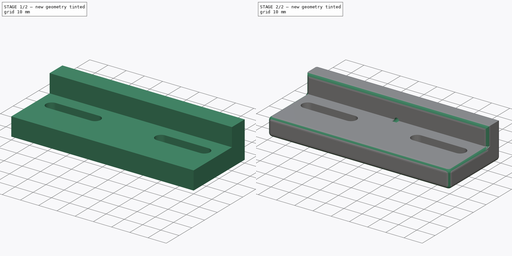
[diagram: build sequence overview — one tinted view per stage of 2, left to right]
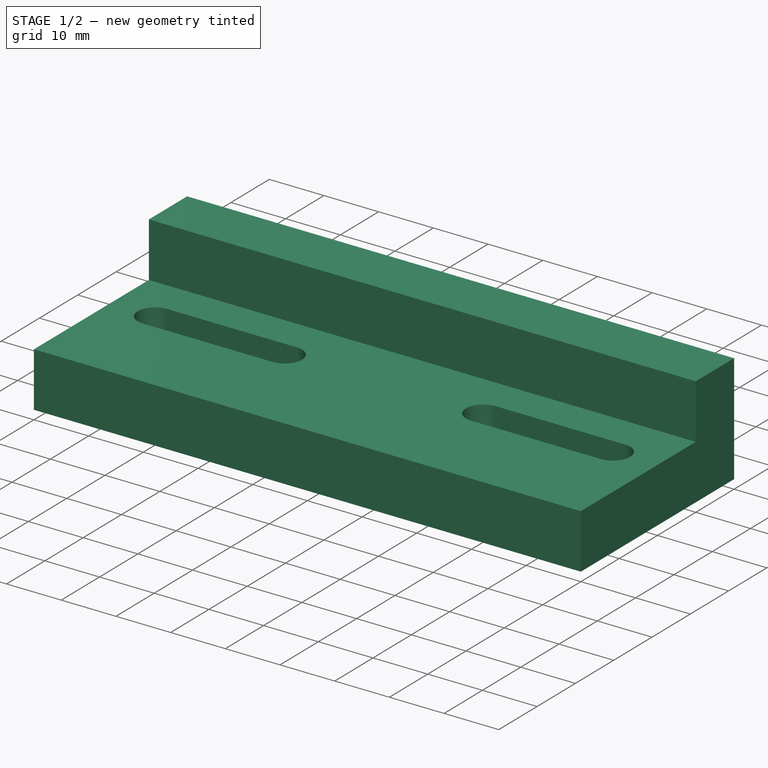
[diagram: stage 1 of 2 — iso view after this stage's code; geometry added in this stage tinted green]
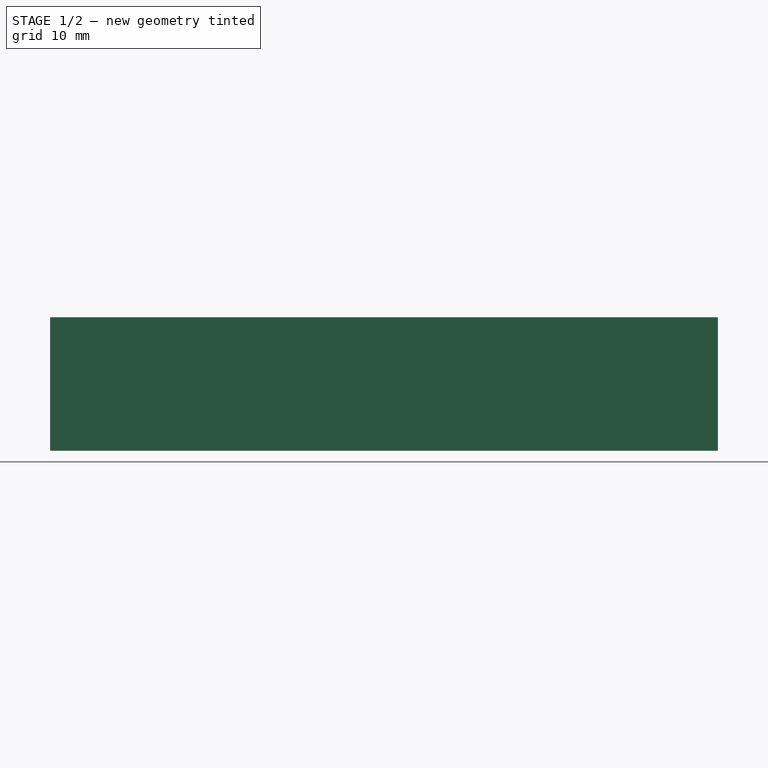
[diagram: stage 1 of 2 — front view after this stage's code; geometry added in this stage tinted green]
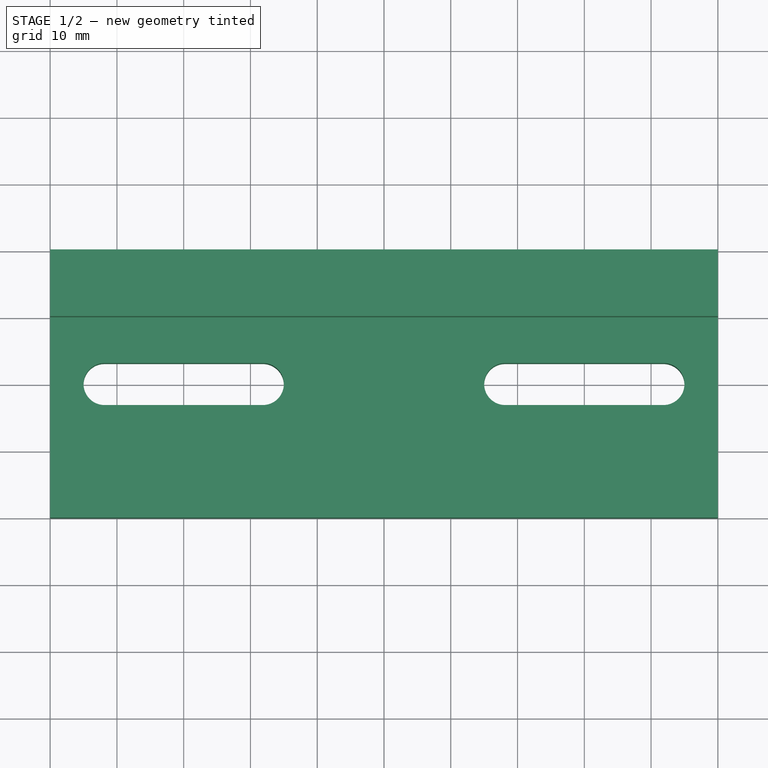
[diagram: stage 1 of 2 — top view after this stage's code; geometry added in this stage tinted green]
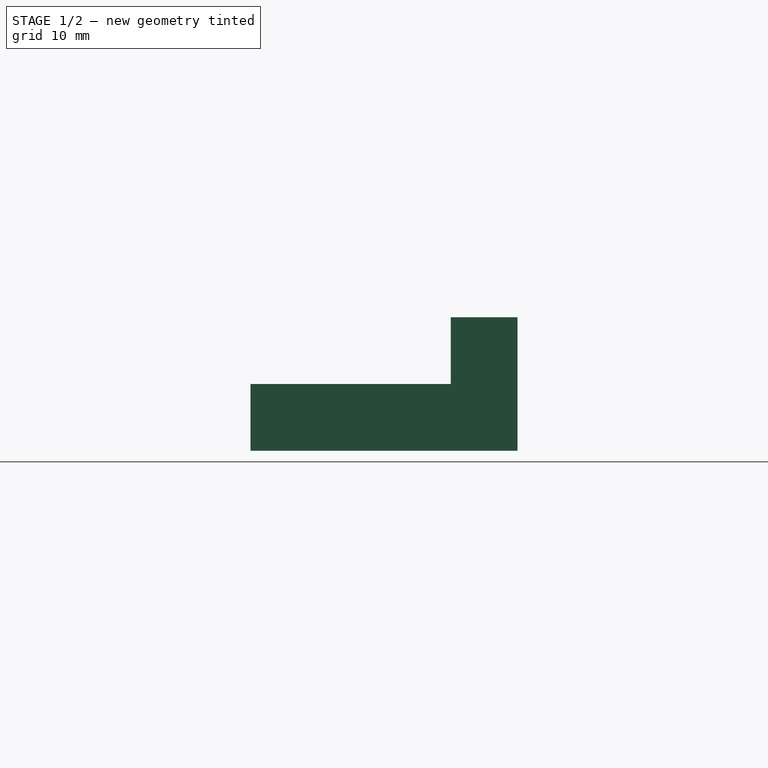
[diagram: stage 1 of 2 — right view after this stage's code; geometry added in this stage tinted green]
FCSTD DOCUMENT  (FreeCAD 0.19R24276 (Git))
Label: button_snap_holder
License: All rights reserved
LicenseURL: http://en.wikipedia.org/wiki/All_rights_reserved
objects: Sketcher::SketchObject×3, PartDesign::Pad×2, Spreadsheet::Sheet×1, PartDesign::Pocket×1, PartDesign::Fillet×1, PartDesign::Body×1
note: 12 computed .brp shape members not serialized (recipe doc carries the construction recipe); baked Part::Feature solids carry a one-line shape summary decoded from their .brp

FEATURE [Sketcher::SketchObject] Sketch
  FullyConstrained = true
  MapMode = 5
  Support = -> [XY_Plane]
  expr: Constraints[37] = <<dims>>.hole_center_gap
  expr: Constraints[38] = <<dims>>.slot_length - <<dims>>.hole_diam
  expr: Constraints[32] = <<dims>>.hole_diam
  expr: Constraints[17] = <<dims>>.height
  expr: Constraints[16] = <<dims>>.width
  sketch-geometry (16):
    g0: LineSegment StartX=-50 StartY=20 StartZ=0 EndX=50 EndY=20 EndZ=0
    g1: LineSegment StartX=50 StartY=20 StartZ=0 EndX=50 EndY=-20 EndZ=0
    g2: LineSegment StartX=50 StartY=-20 StartZ=0 EndX=-50 EndY=-20 EndZ=0
    g3: LineSegment StartX=-50 StartY=-20 StartZ=0 EndX=-50 EndY=20 EndZ=0
    g4: LineSegment StartX=0 StartY=20 StartZ=0 EndX=0 EndY=-20 EndZ=0
    g5: LineSegment StartX=-50 StartY=0 StartZ=0 EndX=50 EndY=0 EndZ=0
    g6: ArcOfCircle CenterX=-41.85 CenterY=0 CenterZ=0 NormalX=0 NormalY=0 NormalZ=1 AngleXU=0 Radius=3.15 StartAngle=1.5708 EndAngle=4.71239
    g7: ArcOfCircle CenterX=-18.15 CenterY=0 CenterZ=0 NormalX=0 NormalY=0 NormalZ=1 AngleXU=0 Radius=3.15 StartAngle=4.71239 EndAngle=7.85398
    g8: LineSegment StartX=-41.85 StartY=-3.15 StartZ=0 EndX=-18.15 EndY=-3.15 EndZ=0
    g9: LineSegment StartX=-41.85 StartY=3.15 StartZ=0 EndX=-18.15 EndY=3.15 EndZ=0
    g10: ArcOfCircle CenterX=18.15 CenterY=0 CenterZ=0 NormalX=0 NormalY=0 NormalZ=1 AngleXU=0 Radius=3.15 StartAngle=1.5708 EndAngle=4.71239
    g11: ArcOfCircle CenterX=41.85 CenterY=0 CenterZ=0 NormalX=0 NormalY=0 NormalZ=1 AngleXU=0 Radius=3.15 StartAngle=4.71239 EndAngle=7.85398
    g12: LineSegment StartX=18.15 StartY=-3.15 StartZ=0 EndX=41.85 EndY=-3.15 EndZ=0
    g13: LineSegment StartX=18.15 StartY=3.15 StartZ=0 EndX=41.85 EndY=3.15 EndZ=0
    g14: GeomPoint X=-30 Y=0 Z=0
    g15: GeomPoint X=30 Y=0 Z=0
  constraints (39):
    c: Coincident(g0,g1)
    c: Coincident(g1,g2)
    c: Coincident(g2,g3)
    c: Coincident(g3,g0)
    c: Horizontal(g0)
    c: Horizontal(g2)
    c: Vertical(g1)
    c: Vertical(g3)
    c: PointOnObject(g4,g0)
    c: PointOnObject(g4,g2)
    c: Vertical(g4)
    c: Symmetric(g4,g4,g-1)
    c: PointOnObject(g5,g3)
    c: PointOnObject(g5,g1)
    c: Horizontal(g5)
    c: Symmetric(g5,g5,g-1)
    c: Distance(g0) = 100
    c: Distance(g3) = 40
    c: Tangent(g6,g9) = 1.5708
    c: Tangent(g6,g8) = -1.5708
    c: Tangent(g8,g7) = -1.5708
    c: Tangent(g9,g7) = 1.5708
    c: Horizontal(g8)
    c: Equal(g6,g7)
    c: Tangent(g10,g13) = 1.5708
    c: Tangent(g10,g12) = -1.5708
    c: Tangent(g12,g11) = -1.5708
    c: Tangent(g13,g11) = 1.5708
    c: Horizontal(g12)
    c: Equal(g10,g11)
    c: Equal(g8,g12)
    c: Equal(g6,g10)
    c: Distance(g7,g7) = 6.3
    c: PointOnObject(g6,g5)
    c: Symmetric(g6,g7,g14)
    c: Symmetric(g10,g11,g15)
    c: Symmetric(g14,g15,g-1)
    c: Distance(g14,g15) = 60
    c: Distance(g8) = 23.7
FEATURE [Spreadsheet::Sheet] Spreadsheet  label="dims"
  cells = A1=width; B1(width)=100; A2=height; B2(height)==20 * 2; A3=thickness; B3(thickness)=10; A4=slot length; B4(slot_length)=30; A5=hole center gap; B5(hole_center_gap)=60; A6=hole diam (m6) ; B6(hole_diam)=6.3; A7=platform length; B7(platform_length)=20; A8=snap mount hole diam; B8(snap_mount_hole_diam)=2.5; A9=snap screw length; B9(snap_screw_length)=12
FEATURE [PartDesign::Pad] Pad
  Direction = (1,1,1)
  Length = 10
  Length2 = 100
  Profile = -> Sketch
  Type = 0
FEATURE [Sketcher::SketchObject] Sketch001
  ExternalGeometry = -> [Pad]
  FullyConstrained = true
  MapMode = 5
  Support = -> [XY_Plane]
  expr: Constraints[10] = <<dims>>.thickness
  sketch-geometry (4):
    g0: LineSegment StartX=-50 StartY=20 StartZ=0 EndX=50 EndY=20 EndZ=0
    g1: LineSegment StartX=50 StartY=20 StartZ=0 EndX=50 EndY=10 EndZ=0
    g2: LineSegment StartX=50 StartY=10 StartZ=0 EndX=-50 EndY=10 EndZ=0
    g3: LineSegment StartX=-50 StartY=10 StartZ=0 EndX=-50 EndY=20 EndZ=0
  constraints (11):
    c: Coincident(g0,g1)
    c: Coincident(g1,g2)
    c: Coincident(g2,g3)
    c: Coincident(g3,g0)
    c: Horizontal(g0)
    c: Horizontal(g2)
    c: Vertical(g1)
    c: Vertical(g3)
    c: Coincident(g0,g-3)
    c: PointOnObject(g1,g-4)
    c: Distance(g1) = 10
FEATURE [PartDesign::Pad] Pad001
  BaseFeature = -> Pad
  Direction = (1,1,1)
  Length = 20
  Length2 = 100
  Profile = -> Sketch001
  Type = 0
  expr: Length = <<dims>>.platform_length
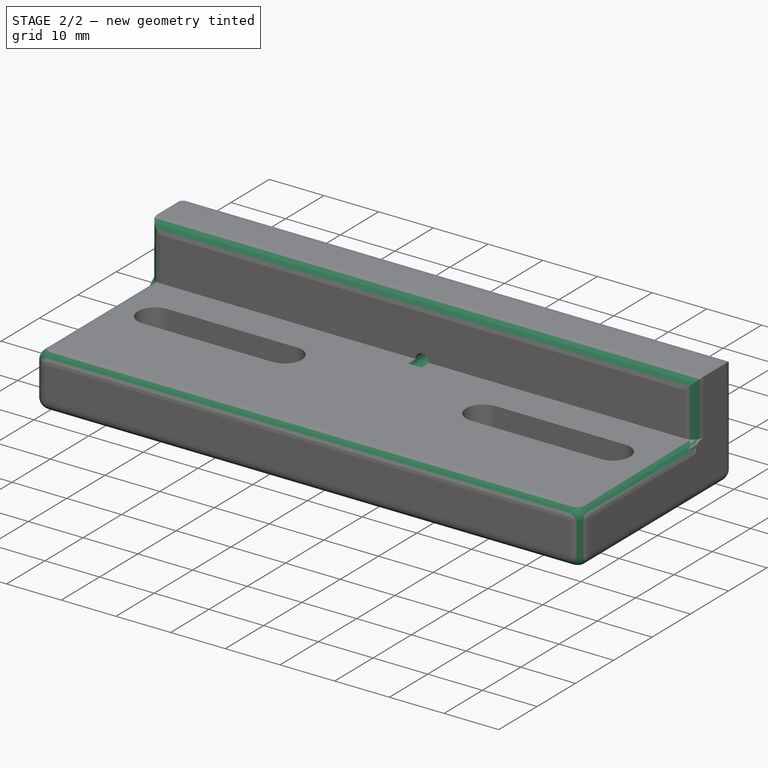
[diagram: stage 2 of 2 — iso view after this stage's code; geometry added in this stage tinted green]
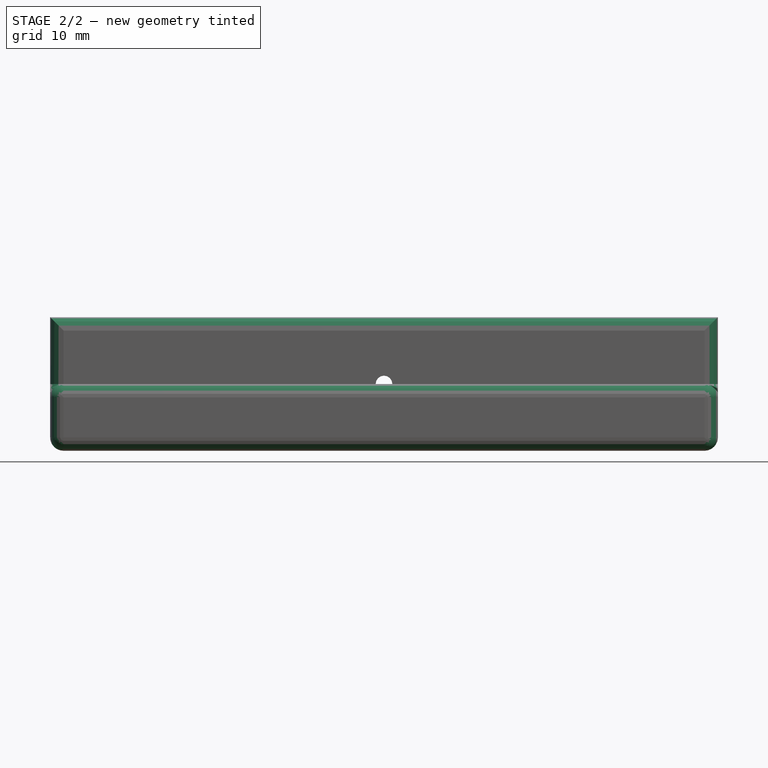
[diagram: stage 2 of 2 — front view after this stage's code; geometry added in this stage tinted green]
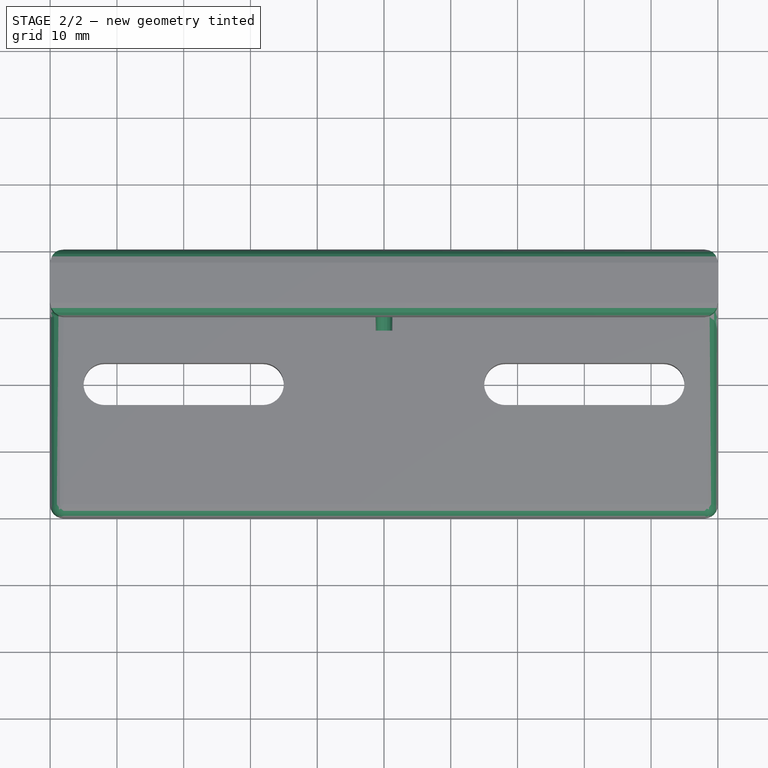
[diagram: stage 2 of 2 — top view after this stage's code; geometry added in this stage tinted green]
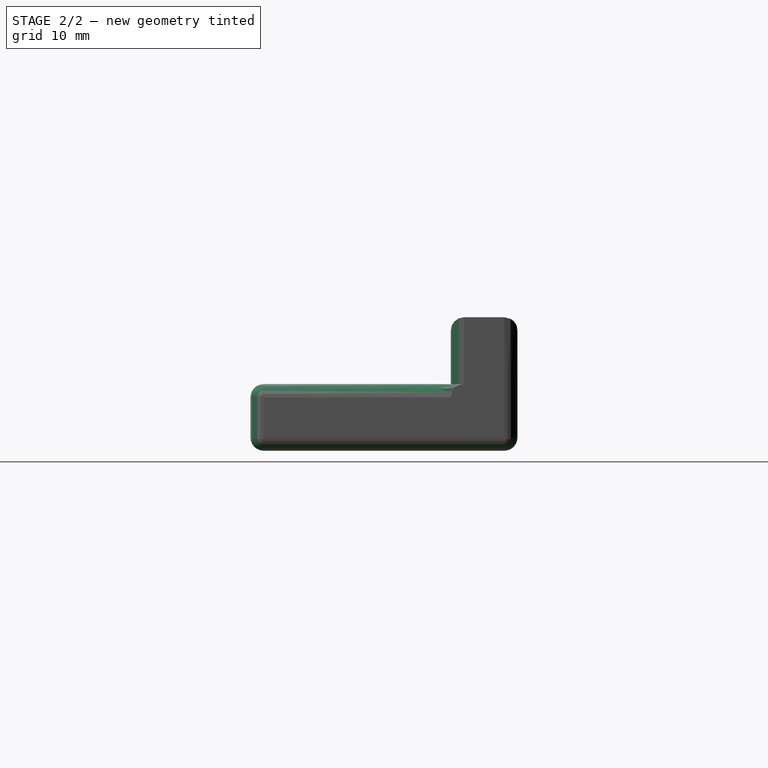
[diagram: stage 2 of 2 — right view after this stage's code; geometry added in this stage tinted green]
FEATURE [Sketcher::SketchObject] Sketch002
  FullyConstrained = true
  MapMode = 5
  Placement = pos=(0,20,0) rot=(0,0.707107,0.707107;3.14159rad)
  Support = -> [Pad001]
  expr: Constraints[2] = <<dims>>.snap_mount_hole_diam
  expr: Constraints[1] = <<dims>>.platform_length / 2
  sketch-geometry (1):
    g0: Circle CenterX=0 CenterY=10 CenterZ=0 NormalX=0 NormalY=0 NormalZ=1 AngleXU=0 Radius=1.25
  constraints (3):
    c: PointOnObject(g0,g-2)
    c: Distance(g-1,g0) = 10
    c: Diameter(g0) = 2.5
FEATURE [PartDesign::Pocket] Pocket
  BaseFeature = -> Pad001
  Length = 12
  Length2 = 100
  Profile = -> Sketch002
  Type = 0
  expr: Length = <<dims>>.snap_screw_length
FEATURE [PartDesign::Fillet] Fillet
  Base = -> Pocket [Edge1,Edge14,Edge38,Edge41,Edge24,Edge13,Edge2,Edge36,Edge10,Edge34,Edge6,Edge15,Edge40,Edge7,Edge23,Edge54,Edge45,Edge35,Edge25,Edge9]
  BaseFeature = -> Pocket
  Radius = 2
  SupportTransform = false
FEATURE [PartDesign::Body] Body
  Group = -> [Sketch,Pad,Sketch001,Pad001,Sketch002,Pocket,Fillet]
  Origin = -> Origin
  Tip = -> Fillet
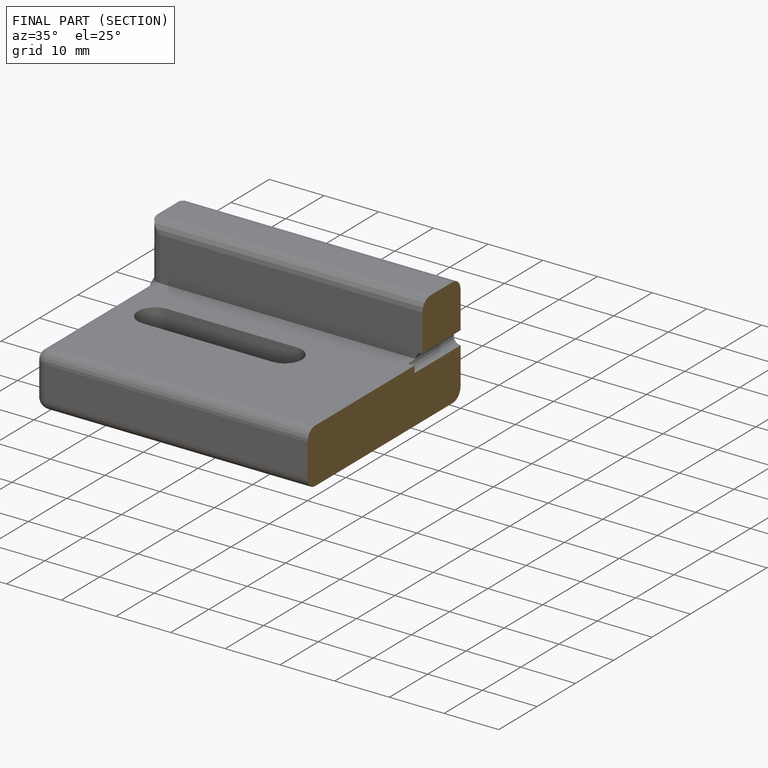
[diagram: finished part — half-section view (interior)]
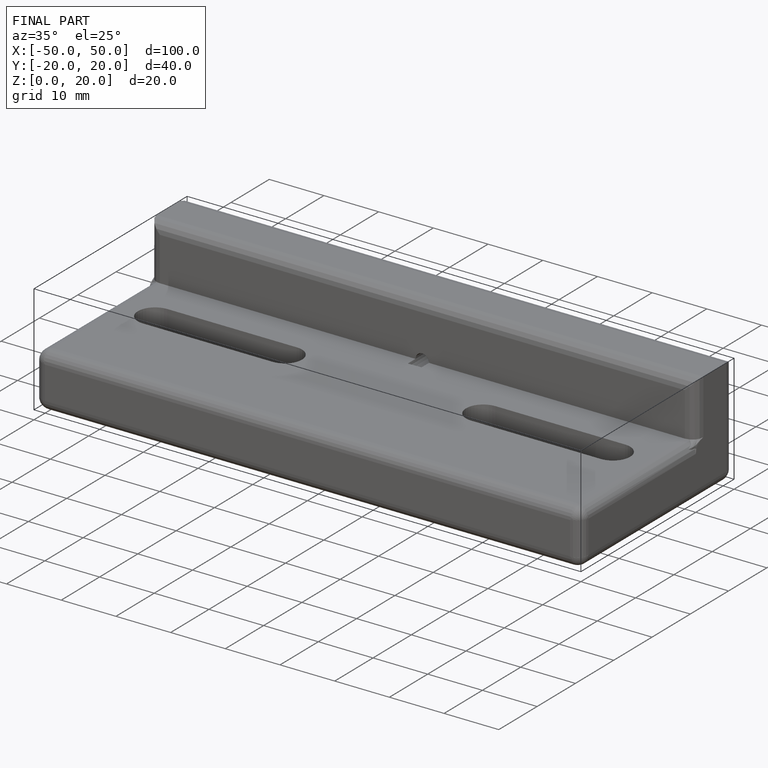
[diagram: finished part — iso view with bounding-box wireframe]
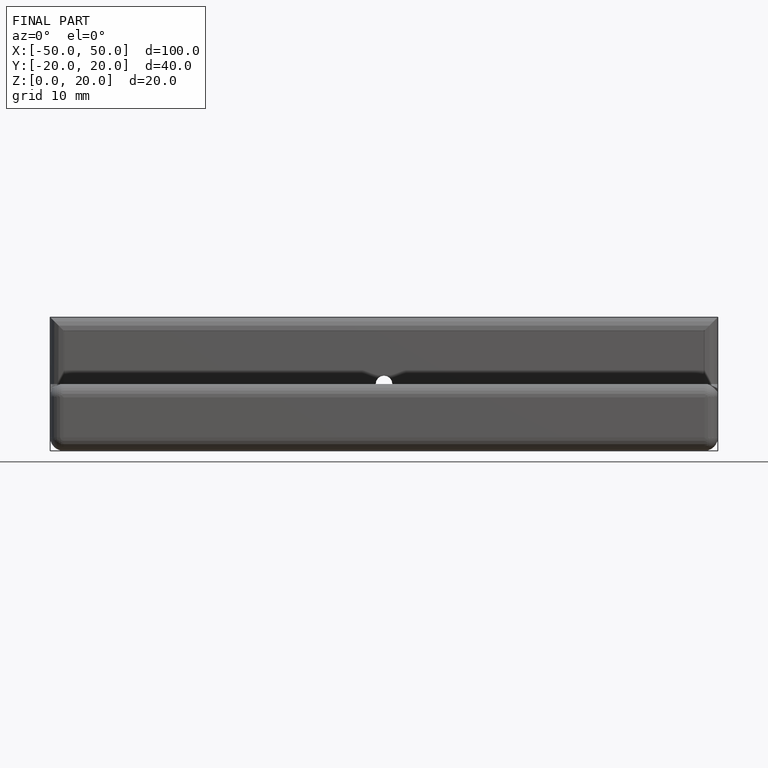
[diagram: finished part — front view with bounding-box wireframe]
